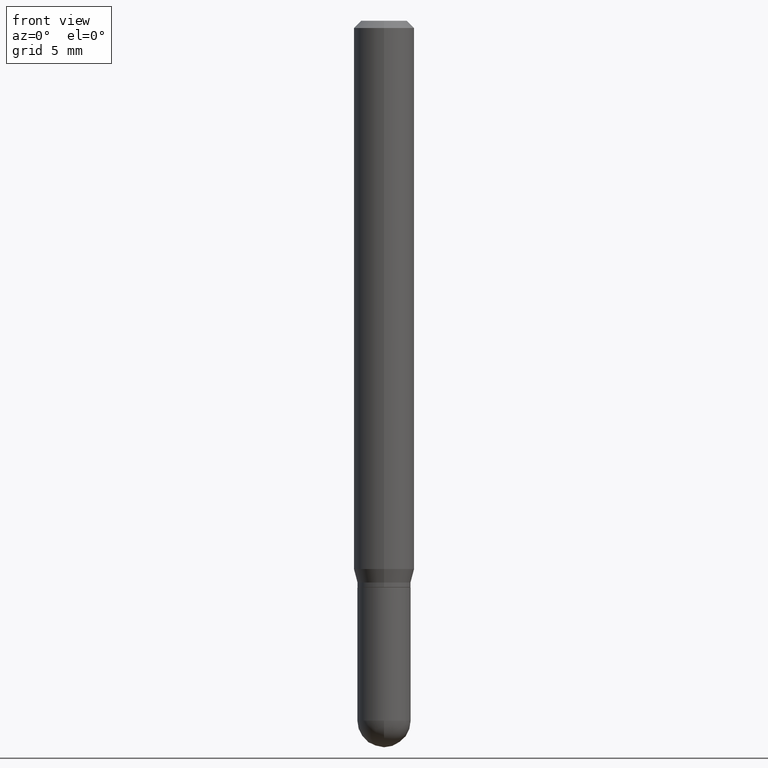
[diagram: clean part render]
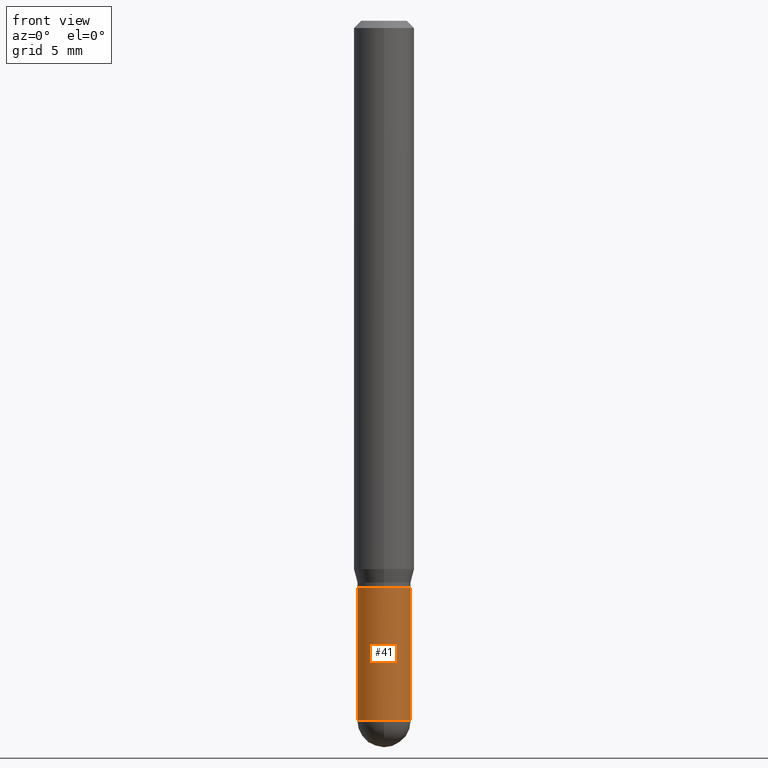
[diagram: same view with one face highlighted and labeled with its STEP entity id]
A machine part, front view. The second image highlights one B-rep face of the part: STEP entity #41.
In plain terms, the highlighted cylindrical surface (edge-blend (fillet) strip) has radius 1.397 mm, axis along (-0, 0, 1).
Its self-contained STEP definition (entity closure, byte-faithful):
#6 = AXIS2_PLACEMENT_3D ( 'NONE', #97, #305, #432 ) ;
#7 = DIRECTION ( 'NONE',  ( -2.445468806185136597E-29, 3.491481338843145583E-15, 1.000000000000000000 ) ) ;
#12 = ORIENTED_EDGE ( 'NONE', *, *, #187, .F. ) ;
#20 = VERTEX_POINT ( 'NONE', #369 ) ;
#41 = ADVANCED_FACE ( 'NONE', ( #457 ), #492, .T. ) ;
#42 = DIRECTION ( 'NONE',  ( 1.000000000000000000, -6.982962677686262766E-15, 0.000000000000000000 ) ) ;
#58 = CIRCLE ( 'NONE', #370, 0.05500000000000000028 ) ;
#93 = DIRECTION ( 'NONE',  ( 1.000000000000000000, -6.982962677686266711E-15, 4.876176775795935793E-29 ) ) ;
#97 = CARTESIAN_POINT ( 'NONE',  ( 2.861198503236610065E-29, -4.085033166446480067E-15, -1.170000000000000151 ) ) ;
#100 = CARTESIAN_POINT ( 'NONE',  ( -0.05500000000000000028, -4.174313345869358610E-15, -1.170000000000000151 ) ) ;
#102 = LINE ( 'NONE', #507, #313 ) ;
#116 = CARTESIAN_POINT ( 'NONE',  ( 0.05500000000000000028, -3.840629472727446888E-16, 2.681897226687764826E-30 ) ) ;
#131 = CARTESIAN_POINT ( 'NONE',  ( 0.000000000000000000, 0.000000000000000000, 0.000000000000000000 ) ) ;
#139 = CIRCLE ( 'NONE', #486, 0.05500000000000000028 ) ;
#143 = AXIS2_PLACEMENT_3D ( 'NONE', #131, #294, #93 ) ;
#151 = CARTESIAN_POINT ( 'NONE',  ( -0.05500000000000000028, -4.174313345869358610E-15, -1.445000000000000062 ) ) ;
#163 = DIRECTION ( 'NONE',  ( 1.000000000000000000, -6.982962677686262766E-15, 0.000000000000000000 ) ) ;
#181 = DIRECTION ( 'NONE',  ( -2.445468806185136877E-29, 3.491481338843145188E-15, 1.000000000000000000 ) ) ;
#187 = EDGE_CURVE ( 'NONE', #278, #233, #102, .T. ) ;
#228 = EDGE_CURVE ( 'NONE', #233, #318, #254, .T. ) ;
#231 = VERTEX_POINT ( 'NONE', #391 ) ;
#233 = VERTEX_POINT ( 'NONE', #100 ) ;
#244 = ORIENTED_EDGE ( 'NONE', *, *, #228, .F. ) ;
#245 = DIRECTION ( 'NONE',  ( -2.445468806185136877E-29, 3.491481338843145188E-15, 1.000000000000000000 ) ) ;
#254 = CIRCLE ( 'NONE', #6, 0.05500000000000000028 ) ;
#260 = VECTOR ( 'NONE', #245, 39.37007874015748143 ) ;
#278 = VERTEX_POINT ( 'NONE', #151 ) ;
#282 = EDGE_LOOP ( 'NONE', ( #12, #368, #454, #324, #244 ) ) ;
#294 = DIRECTION ( 'NONE',  ( -2.445468806185136597E-29, 3.491481338843145583E-15, 1.000000000000000000 ) ) ;
#305 = DIRECTION ( 'NONE',  ( -2.445468806185136597E-29, 3.491481338843145583E-15, 1.000000000000000000 ) ) ;
#313 = VECTOR ( 'NONE', #181, 39.37007874015748143 ) ;
#314 = DIRECTION ( 'NONE',  ( -2.445468806185136597E-29, 3.491481338843145583E-15, 1.000000000000000000 ) ) ;
#318 = VERTEX_POINT ( 'NONE', #393 ) ;
#324 = ORIENTED_EDGE ( 'NONE', *, *, #466, .T. ) ;
#343 = EDGE_CURVE ( 'NONE', #278, #20, #58, .T. ) ;
#368 = ORIENTED_EDGE ( 'NONE', *, *, #343, .T. ) ;
#369 = CARTESIAN_POINT ( 'NONE',  ( -3.840629472727099789E-16, -0.05500000000000514894, -1.444999999999999840 ) ) ;
#370 = AXIS2_PLACEMENT_3D ( 'NONE', #511, #314, #42 ) ;
#391 = CARTESIAN_POINT ( 'NONE',  ( 0.05500000000000000028, -4.949174797810157466E-15, -1.445000000000000062 ) ) ;
#393 = CARTESIAN_POINT ( 'NONE',  ( 0.05500000000000000028, -4.469096113719225052E-15, -1.170000000000000151 ) ) ;
#402 = EDGE_CURVE ( 'NONE', #20, #231, #139, .T. ) ;
#432 = DIRECTION ( 'NONE',  ( 1.000000000000000000, -6.982962677686262766E-15, 0.000000000000000000 ) ) ;
#444 = LINE ( 'NONE', #116, #260 ) ;
#454 = ORIENTED_EDGE ( 'NONE', *, *, #402, .T. ) ;
#457 = FACE_OUTER_BOUND ( 'NONE', #282, .T. ) ;
#466 = EDGE_CURVE ( 'NONE', #231, #318, #444, .T. ) ;
#476 = CARTESIAN_POINT ( 'NONE',  ( 3.533702424937522517E-29, -5.045190534628345684E-15, -1.445000000000000062 ) ) ;
#486 = AXIS2_PLACEMENT_3D ( 'NONE', #476, #7, #163 ) ;
#492 = CYLINDRICAL_SURFACE ( 'NONE', #143, 0.05500000000000000028 ) ;
#507 = CARTESIAN_POINT ( 'NONE',  ( -0.05500000000000000028, 3.907985046680551042E-16, -2.705414299640198362E-30 ) ) ;
#511 = CARTESIAN_POINT ( 'NONE',  ( 3.533702424937522517E-29, -5.045190534628345684E-15, -1.445000000000000062 ) ) ;